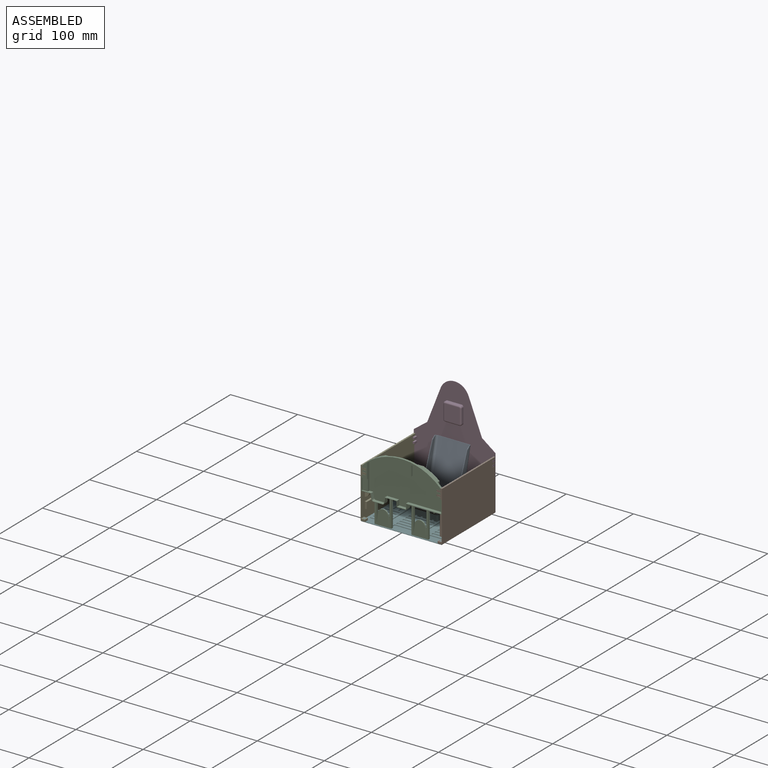
[diagram: assembled view]
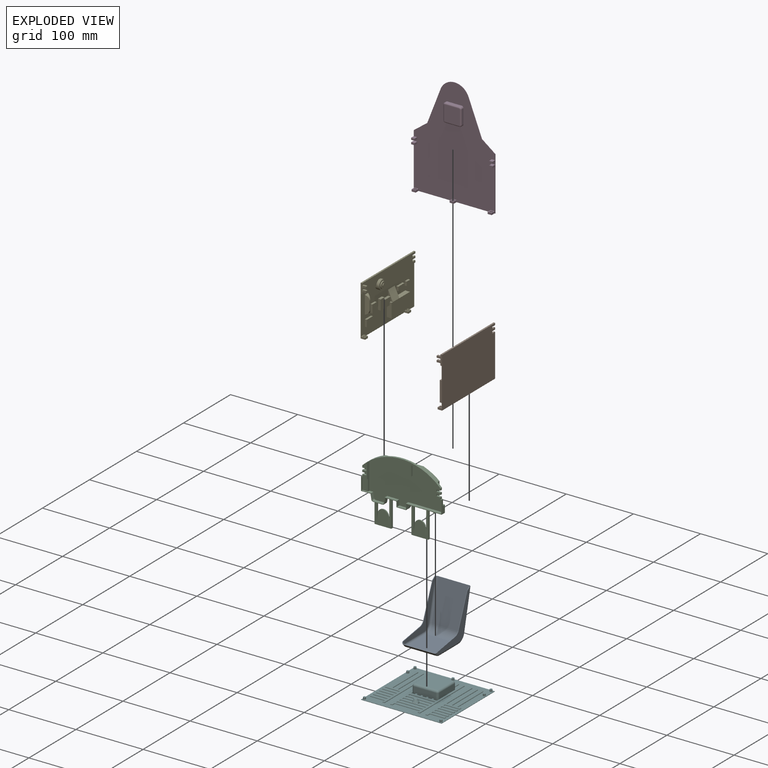
[diagram: exploded view]
GUIDED TOUR — MATED ASSEMBLY (Onshape document f643e75d56a3ad6be1e354ca, AutoMate assembly f643e75d56a3ad6be1e354ca_9b9a3edb59c0431f079ebedc_5ecf5f569c2795ce828b274c_default)

This assembly has 6 components, labeled P0..P5 below (a component is one placed occurrence of a part; the same part can appear more than once), held together by 5 mates. A mate is a constraint between two components; its type names the relative motion it leaves free:
  FASTENED — locks the two components together rigidly (no relative motion).
Axis/direction vectors are unit vectors and 'through' points are millimeter coordinates, both in the assembly's world frame.

MATES
  1. FASTENED "緊固 3": P1 <-> P5, direction (0.000, 0.000, 1.000) through (57.13, 58.55, -73.95) mm
  2. FASTENED "緊固 2": P4 <-> P5, direction (0.000, 0.000, 1.000) through (-56.87, 58.55, -73.95) mm
  3. FASTENED "緊固 5": P2 <-> P1, direction (1.000, 0.000, 0.000) through (58.33, -36.45, -9.35) mm
  4. FASTENED "緊固 1": P5 <-> P3, direction (0.000, 0.000, 1.000) through (-56.47, 73.55, -73.95) mm
  5. FASTENED "緊固 4": P0 <-> P5, direction (0.000, 0.000, -1.000) through (0.13, 48.55, -63.95) mm

ASSEMBLY ORDER
  1. P2 — the base component [order verified]
  2. P0 [order verified]
  3. P1 [order verified]
  4. P4 [order verified]
  5. P5 [order verified]
  6. P3 [order verified]
Order-tag legend:
  [order verified] — this step's position reverses a verified removal order: the component was checked to insert without passing through the ones already placed.

Of the 6 components, 4 carry the full construction recipe — the FeatureScript program that regenerates the part's solid from scratch; the rest are supplied as boundary geometry only.
Each toured component is shown spotlighted twice — in the assembled view, then in the exploded view, where a leader line traces a displaced component back to its assembled socket (saturated green if recipe-attached, orange if geometry-only; every other component desaturated gray) — followed by its recipe or geometry summary and the mates that hold it.
NOTE — this tour is split across 2 documents so each fits a 32k-token context. This is document 1: the component sections continue in the remaining 1 document, each repeating the header above.
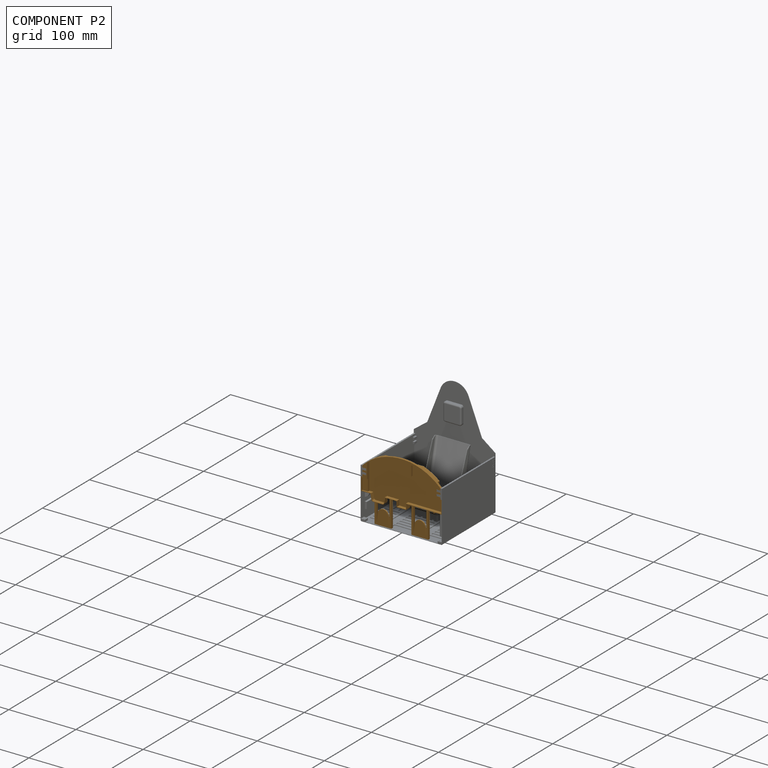
[diagram: component P2 — assembled]
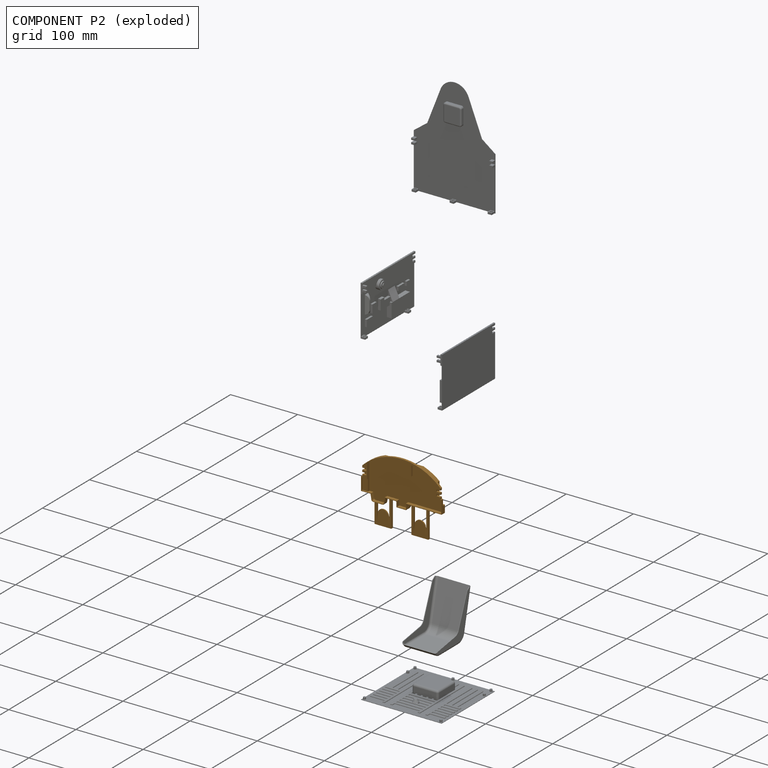
[diagram: component P2 — exploded]
COMPONENT P2 — geometry summary (no construction recipe available for this part):
  bounding box: 120.0 x 98.1 x 20.2 mm
  B-rep topology: 1 solid, 248 faces, 1322 edges
  volume: 21059 mm^3 (9% of its bounding box)
Held by: FASTENED mate "緊固 5" to P1.
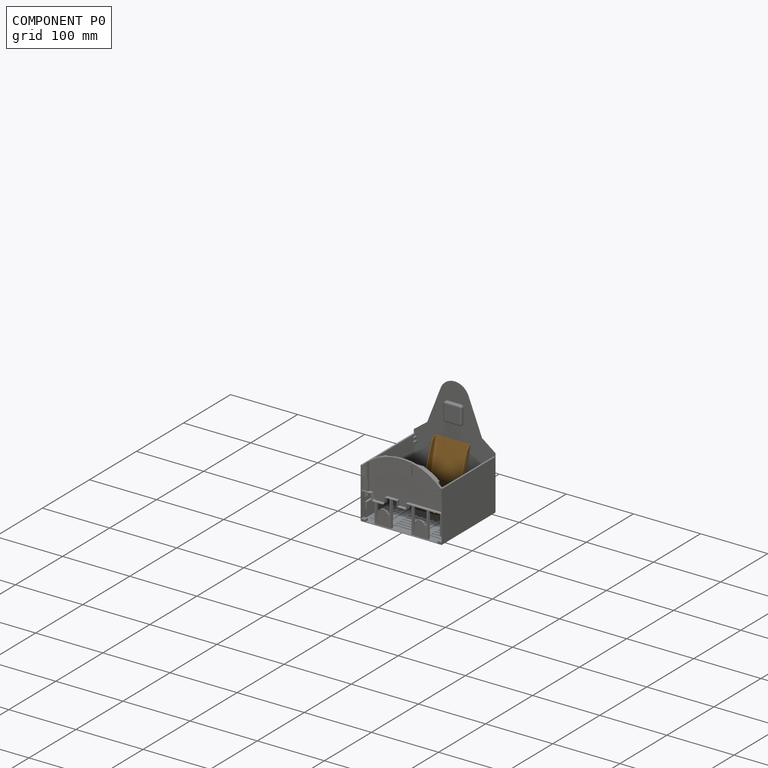
[diagram: component P0 — assembled]
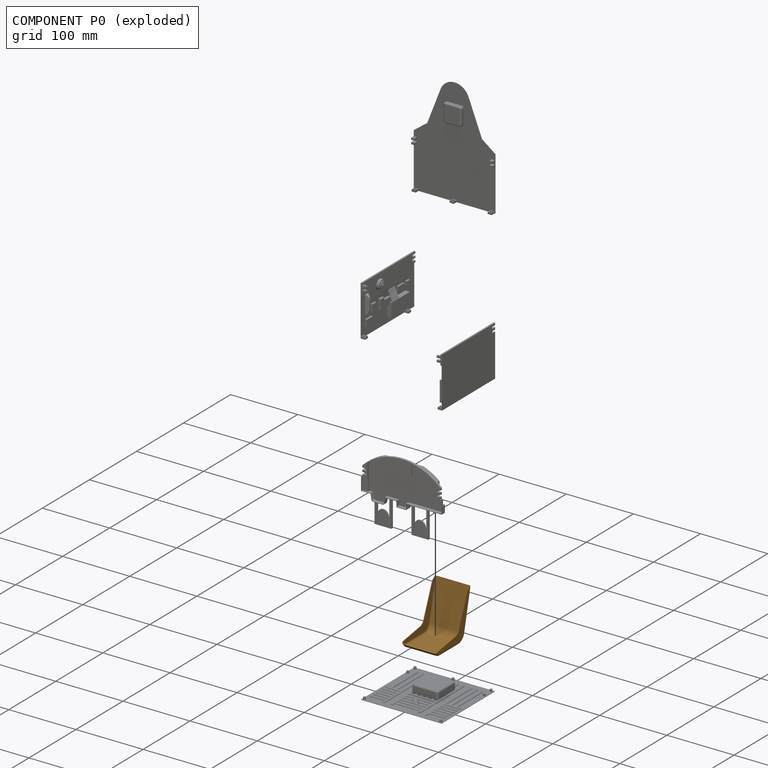
[diagram: component P0 — exploded]
COMPONENT P0 — geometry summary (no construction recipe available for this part):
  bounding box: 74.7 x 71.1 x 52.6 mm
  B-rep topology: 1 solid, 44 faces, 204 edges
  volume: 7087 mm^3 (3% of its bounding box)
  symmetry: mirror-symmetric across its x mid-plane
Held by: FASTENED mate "緊固 4" to P5.
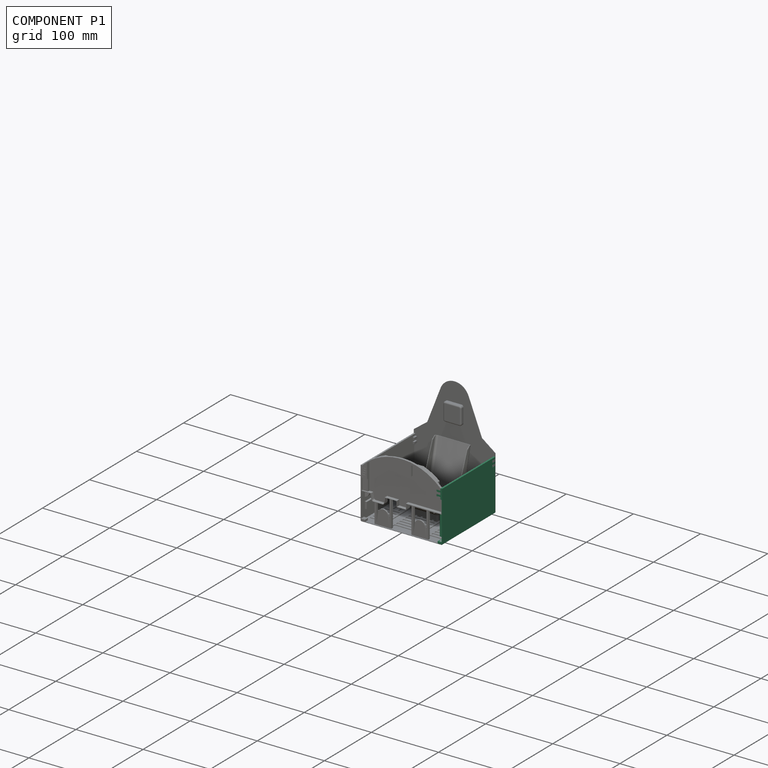
[diagram: component P1 — assembled]
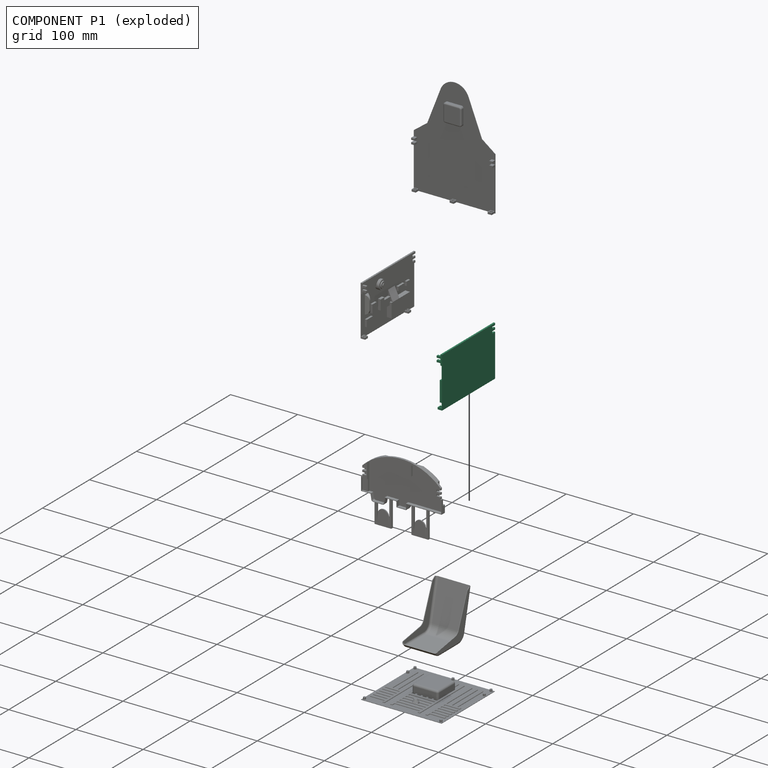
[diagram: component P1 — exploded]
COMPONENT P1 — recipe-attached (CADFS 00360887, mesh-verified: the recipe's output STEP matches this component's geometry to below the mesh-comparison resolution (tessellation chordal tolerance ~0.204 mm)).
Held by: FASTENED mate "緊固 3" to P5; FASTENED mate "緊固 5" to P2.
Construction recipe (FeatureScript — the CAD program that rebuilds this solid; sketch coordinates are in the units given by the * unit suffixes, e.g. mm):

FeatureScript 1511;
import(path : "onshape/std/geometry.fs", version : "1511.0");
import(path : "onshape/std/common.fs", version : "1511.0");
const mm = millimeter;
const VERTEX = EntityType.VERTEX;
const EDGE = EntityType.EDGE;
const FACE = EntityType.FACE;
const BODY = EntityType.BODY;
function v(x, y){return vector(x, y);}
function OD(order){return orderDisambiguation(order);}
function OSD(set){return originalSetDisambiguation(set);}
function TD(topology){return topologyDisambiguation(topology);}
function TDD(query){return trueDependencyDisambiguation(query);}
function sQuery(a, b, c) {return sketchEntityQuery(a, b, c);}

annotation { "Feature Type Name" : "Feature", "Feature Type Description" : "" }
export const myFeature = defineFeature(function(context is Context, id is Id, definition is map)
    precondition{}
    {
        {
            var Q0;
            Q0=qCreatedBy(makeId("Top.planeOp"),FACE);
            var sketch = newSketch(context, id + "F0", { "sketchPlane" : qUnion([Q0])});
            skLineSegment(sketch, "E0.bottom", {"start": v(-56.5, 75) * mm, "end": v(56.5, 75) * mm});
            skLineSegment(sketch, "E0.top", {"start": v(-56.5, 0) * mm, "end": v(56.5, 0) * mm});
            skLineSegment(sketch, "E0.left", {"start": v(-56.5, 75) * mm, "end": v(-56.5, 0) * mm});
            skLineSegment(sketch, "E0.right", {"start": v(56.5, 75) * mm, "end": v(56.5, 0) * mm});
            skPoint(sketch, "E1", {"position": v(0, 0) * mm});
            skSolve(sketch);
        }
        {
            var Q0;
            Q0 = qSketchRegion(id + "F0", true);
            extrude(context, id + "F1", {"entities" : qUnion([Q0]), "depth" : 0.6 * mm});
        }
        {
            var Q0;
            Q0=makeQuery(id+"F1.opExtrude","CAP_FACE",FACE,{"disambiguationData":[OSD([sQuery(id+"F0.wireOp",EDGE,"E0.bottom"),sQuery(id+"F0.wireOp",EDGE,"E0.top"),sQuery(id+"F0.wireOp",EDGE,"E0.left"),sQuery(id+"F0.wireOp",EDGE,"E0.right")])],"isStart":false});
            var sketch = newSketch(context, id + "F2", { "sketchPlane" : qUnion([Q0])});
            skLineSegment(sketch, "E2.bottom", {"start": v(-56.5, 75) * mm, "end": v(56.5, 75) * mm});
            skLineSegment(sketch, "E2.top", {"start": v(-56.5, 60) * mm, "end": v(56.5, 60) * mm});
            skLineSegment(sketch, "E2.left", {"start": v(-56.5, 75) * mm, "end": v(-56.5, 60) * mm});
            skLineSegment(sketch, "E2.right", {"start": v(56.5, 75) * mm, "end": v(56.5, 60) * mm});
            skSolve(sketch);
        }
        {
            var Q0;
            Q0 = qSketchRegion(id + "F2", true);
            extrude(context, id + "F3", {"entities" : qUnion([Q0]), "operationType" : NewBodyOperationType.ADD, "depth" : 1.8 * mm});
        }
        {
            var Q0;
            Q0=qCreatedBy(makeId("Right.planeOp"),FACE);
            cPlane(context, id + "F4", {"entities" : qUnion([Q0]), "cplaneType" : CPlaneType.OFFSET, "offset" : 10 * mm, "width" : 150 * mm, "height" : 150 * mm});
        }
        {
            var Q0;
            Q0=qCreatedBy(id+"F4.planeOp",FACE);
            var sketch = newSketch(context, id + "F5", { "sketchPlane" : qUnion([Q0])});
            skLineSegment(sketch, "E3", {"start": v(6, 0.6) * mm, "end": v(36, 0.6) * mm});
            skLineSegment(sketch, "E4", {"start": v(36, 0.6) * mm, "end": v(36, 8.6) * mm});
            skLineSegment(sketch, "E5", {"start": v(6, 8.6) * mm, "end": v(6, 0.6) * mm});
            skLineSegment(sketch, "E6", {"start": v(36, 8.6) * mm, "end": v(6, 8.6) * mm});
            skSolve(sketch);
        }
        {
            var Q0;
            Q0 = qSketchRegion(id + "F5", true);
            extrude(context, id + "F6", {"entities" : qUnion([Q0]), "operationType" : NewBodyOperationType.ADD, "depth" : 39 * mm});
        }
        {
            var Q0;
            Q0=makeQuery(id+"F1.opExtrude","CAP_FACE",FACE,{"disambiguationData":[OSD([sQuery(id+"F0.wireOp",EDGE,"E0.bottom"),sQuery(id+"F0.wireOp",EDGE,"E0.top"),sQuery(id+"F0.wireOp",EDGE,"E0.left"),sQuery(id+"F0.wireOp",EDGE,"E0.right")])],"isStart":false});
            var sketch = newSketch(context, id + "F7", { "sketchPlane" : qUnion([Q0])});
            skLineSegment(sketch, "E7", {"start": v(-54, 17) * mm, "end": v(-54, 8) * mm});
            skLineSegment(sketch, "E8", {"start": v(-54, 8) * mm, "end": v(10, 8) * mm});
            skLineSegment(sketch, "E9", {"start": v(10, 8) * mm, "end": v(10, 39) * mm});
            skLineSegment(sketch, "E10", {"start": v(10, 39) * mm, "end": v(-26, 39) * mm});
            skLineSegment(sketch, "E11", {"start": v(-26, 39) * mm, "end": v(-26, 17) * mm});
            skLineSegment(sketch, "E12", {"start": v(-26, 17) * mm, "end": v(-54, 17) * mm});
            skSolve(sketch);
        }
        {
            var Q0;
            Q0 = qSketchRegion(id + "F7", true);
            extrude(context, id + "F8", {"entities" : qUnion([Q0]), "operationType" : NewBodyOperationType.ADD, "depth" : 3.4 * mm});
        }
        {
            var Q0;
            Q0=makeQuery(id+"F8.opExtrude","CAP_FACE",FACE,{"disambiguationData":[OSD([sQuery(id+"F7.wireOp",EDGE,"E7"),sQuery(id+"F7.wireOp",EDGE,"E8"),sQuery(id+"F7.wireOp",EDGE,"E9"),sQuery(id+"F7.wireOp",EDGE,"uyQ6YQ2C-q6pP-OxL6-5fo1-xEx53bqn0l92"),sQuery(id+"F7.wireOp",EDGE,"j48iJAs0-QAIT-l2oA-MukY-UUH54dbWInNL"),sQuery(id+"F7.wireOp",EDGE,"E10"),sQuery(id+"F7.wireOp",EDGE,"E11"),sQuery(id+"F7.wireOp",EDGE,"E12")])],"isStart":false});
            var sketch = newSketch(context, id + "F9", { "sketchPlane" : qUnion([Q0])});
            skLineSegment(sketch, "E13", {"start": v(-26, 17) * mm, "end": v(-26, 26.14) * mm});
            skLineSegment(sketch, "E14", {"start": v(-26, 26.14) * mm, "end": v(0.01, 30.73) * mm});
            skLineSegment(sketch, "E15", {"start": v(0.01, 30.73) * mm, "end": v(1.57, 21.86) * mm});
            skLineSegment(sketch, "E16", {"start": v(1.57, 21.86) * mm, "end": v(-26, 17) * mm});
            skSolve(sketch);
        }
        {
            var Q0;
            Q0 = qSketchRegion(id + "F9", true);
            extrude(context, id + "F10", {"entities" : qUnion([Q0]), "operationType" : NewBodyOperationType.ADD, "depth" : 4 * mm});
        }
        {
            var Q0;
            Q0=makeQuery(id+"F1.opExtrude","CAP_FACE",FACE,{"disambiguationData":[OSD([sQuery(id+"F0.wireOp",EDGE,"E0.bottom"),sQuery(id+"F0.wireOp",EDGE,"E0.top"),sQuery(id+"F0.wireOp",EDGE,"E0.left"),sQuery(id+"F0.wireOp",EDGE,"E0.right")])],"isStart":false});
            var sketch = newSketch(context, id + "F11", { "sketchPlane" : qUnion([Q0])});
            skLineSegment(sketch, "E17", {"start": v(-19, 39) * mm, "end": v(-26, 39) * mm});
            skLineSegment(sketch, "E18", {"start": v(-26, 39) * mm, "end": v(-26, 42.75) * mm});
            skLineSegment(sketch, "E19", {"start": v(-22.78, 43.86) * mm, "end": v(-19, 39) * mm});
            skPoint(sketch, "E20.visualSharp", {"position": v(-26, 48) * mm});
            skArc(sketch, "E20.filletArc", {"start": v(-22.78, 43.86) * mm, "mid": v(-24.78, 44.46) * mm, "end": v(-26, 42.75) * mm});
            skSolve(sketch);
        }
        {
            var Q0;
            Q0 = qSketchRegion(id + "F11", true);
            extrude(context, id + "F12", {"entities" : qUnion([Q0]), "operationType" : NewBodyOperationType.ADD, "depth" : 2.4 * mm});
        }
        {
            var Q0;
            Q0=makeQuery(id+"F12.boolean.opBoolean","MERGE",FACE,{"derivedFrom":[makeQuery(id+"F10.boolean.opBoolean","MERGE",FACE,{"derivedFrom":[makeQuery(id+"F8.opExtrude","SWEPT_FACE",FACE,{"disambiguationData":[OSD([sQuery(id+"F7.wireOp",EDGE,"E11")])]}),makeQuery(id+"F10.opExtrude","SWEPT_FACE",FACE,{"disambiguationData":[OSD([sQuery(id+"F9.wireOp",EDGE,"E13")])]})]}),makeQuery(id+"F12.opExtrude","SWEPT_FACE",FACE,{"disambiguationData":[OSD([sQuery(id+"F11.wireOp",EDGE,"E18")])]})]});
            var sketch = newSketch(context, id + "F13", { "sketchPlane" : qUnion([Q0])});
            skLineSegment(sketch, "E21", {"start": v(-32, 0.6) * mm, "end": v(-25, 0.6) * mm});
            skLineSegment(sketch, "E22", {"start": v(-25, 0.6) * mm, "end": v(-26.55, 6.4) * mm});
            skArc(sketch, "E23", {"start": v(-26.55, 6.4) * mm, "mid": v(-30.37, 4.53) * mm, "end": v(-32, 0.6) * mm});
            skSolve(sketch);
        }
        {
            var Q0;
            Q0 = qSketchRegion(id + "F13", true);
            extrude(context, id + "F14", {"entities" : qUnion([Q0]), "operationType" : NewBodyOperationType.ADD, "depth" : 28 * mm});
        }
        {
            var Q0;
            Q0=makeQuery(id+"F1.opExtrude","CAP_FACE",FACE,{"disambiguationData":[OSD([sQuery(id+"F0.wireOp",EDGE,"E0.bottom"),sQuery(id+"F0.wireOp",EDGE,"E0.top"),sQuery(id+"F0.wireOp",EDGE,"E0.left"),sQuery(id+"F0.wireOp",EDGE,"E0.right")])],"isStart":false});
            var sketch = newSketch(context, id + "F15", { "sketchPlane" : qUnion([Q0])});
            skLineSegment(sketch, "E24.bottom", {"start": v(-47, 30.4) * mm, "end": v(-43, 30.4) * mm});
            skLineSegment(sketch, "E24.top", {"start": v(-47, 28.4) * mm, "end": v(-43, 28.4) * mm});
            skLineSegment(sketch, "E24.left", {"start": v(-47, 30.4) * mm, "end": v(-47, 28.4) * mm});
            skLineSegment(sketch, "E24.right", {"start": v(-43, 30.4) * mm, "end": v(-43, 28.4) * mm});
            skLineSegment(sketch, "E25.bottom", {"start": v(-38, 30.4) * mm, "end": v(-34, 30.4) * mm});
            skLineSegment(sketch, "E25.top", {"start": v(-38, 28.4) * mm, "end": v(-34, 28.4) * mm});
            skLineSegment(sketch, "E25.left", {"start": v(-38, 30.4) * mm, "end": v(-38, 28.4) * mm});
            skLineSegment(sketch, "E25.right", {"start": v(-34, 30.4) * mm, "end": v(-34, 28.4) * mm});
            skSolve(sketch);
        }
        {
            var Q0;
            Q0 = qSketchRegion(id + "F15", true);
            extrude(context, id + "F16", {"entities" : qUnion([Q0]), "operationType" : NewBodyOperationType.ADD, "depth" : 5.4 * mm});
        }
        {
            var Q0;
            Q0=makeQuery(id+"F1.opExtrude","CAP_FACE",FACE,{"disambiguationData":[OSD([sQuery(id+"F0.wireOp",EDGE,"E0.bottom"),sQuery(id+"F0.wireOp",EDGE,"E0.top"),sQuery(id+"F0.wireOp",EDGE,"E0.left"),sQuery(id+"F0.wireOp",EDGE,"E0.right")])],"isStart":false});
            var sketch = newSketch(context, id + "F17", { "sketchPlane" : qUnion([Q0])});
            skLineSegment(sketch, "E26", {"start": v(29.97, 62) * mm, "end": v(18.5, 45.62) * mm});
            skLineSegment(sketch, "E27", {"start": v(18.5, 45.62) * mm, "end": v(7.03, 62) * mm});
            skArc(sketch, "E28", {"start": v(29.97, 62) * mm, "mid": v(18.5, 65.62) * mm, "end": v(7.03, 62) * mm});
            skSolve(sketch);
        }
        {
            var Q0;
            Q0 = qSketchRegion(id + "F17", true);
            extrude(context, id + "F18", {"entities" : qUnion([Q0]), "operationType" : NewBodyOperationType.ADD, "depth" : 9 * mm});
        }
        {
            var Q0;
            Q0=makeQuery(id+"F18.opExtrude","SWEPT_EDGE",EDGE,{"disambiguationData":[OSD([sQuery(id+"F17.wireOp",EDGE,"E26"),sQuery(id+"F17.wireOp",EDGE,"E27")])]});
            fillet(context, id + "F19", {"entities" : qUnion([Q0]), "radius" : 3 * mm, "tangentPropagation" : true, "allowEdgeOverflow" : false});
        }
        {
            var Q0;
            Q0=qCreatedBy(makeId("Right.planeOp"),FACE);
            cPlane(context, id + "F20", {"entities" : qUnion([Q0]), "cplaneType" : CPlaneType.OFFSET, "offset" : 5 * mm, "width" : 150 * mm, "height" : 150 * mm});
        }
        {
            var Q0;
            Q0=qCreatedBy(id+"F20.planeOp",FACE);
            var sketch = newSketch(context, id + "F21", { "sketchPlane" : qUnion([Q0])});
            skArc(sketch, "E29", {"start": v(52.93, 0) * mm, "mid": v(50.5, 3.1) * mm, "end": v(48.07, 0) * mm});
            skLineSegment(sketch, "E30", {"start": v(53, 0.6) * mm, "end": v(56, 0.6) * mm});
            skLineSegment(sketch, "E31", {"start": v(56, 0.6) * mm, "end": v(56, 1.8) * mm});
            skLineSegment(sketch, "E32", {"start": v(56, 1.8) * mm, "end": v(52.7, 1.8) * mm});
            skLineSegment(sketch, "E33", {"start": v(48.07, 0) * mm, "end": v(52.93, 0) * mm});
            skSolve(sketch);
        }
        {
            var Q0;
            Q0 = qSketchRegion(id + "F21", true);
            extrude(context, id + "F22", {"entities" : qUnion([Q0]), "operationType" : NewBodyOperationType.ADD, "oppositeDirection" : true, "depth" : 13 * mm});
        }
        {
            var Q0;
            Q0=makeQuery(id+"F22.opExtrude","CAP_FACE",FACE,{"disambiguationData":[OSD([sQuery(id+"F21.wireOp",EDGE,"E29"),sQuery(id+"F21.wireOp",EDGE,"E30"),sQuery(id+"F21.wireOp",EDGE,"E31"),sQuery(id+"F21.wireOp",EDGE,"E32")])],"isStart":false});
            var sketch = newSketch(context, id + "F23", { "sketchPlane" : qUnion([Q0])});
            skArc(sketch, "E34", {"start": v(-48.8, 0) * mm, "mid": v(-50.5, 2.4) * mm, "end": v(-52.2, 0) * mm});
            skLineSegment(sketch, "E35", {"start": v(-48.8, 0) * mm, "end": v(-52.2, 0) * mm});
            skSolve(sketch);
        }
        {
            var Q0;
            Q0 = qSketchRegion(id + "F23", true);
            extrude(context, id + "F24", {"entities" : qUnion([Q0]), "operationType" : NewBodyOperationType.ADD, "depth" : 4 * mm});
        }
        {
            var Q0;
            Q0=makeQuery(id+"F1.opExtrude","CAP_FACE",FACE,{"disambiguationData":[OSD([sQuery(id+"F0.wireOp",EDGE,"E0.bottom"),sQuery(id+"F0.wireOp",EDGE,"E0.top"),sQuery(id+"F0.wireOp",EDGE,"E0.left"),sQuery(id+"F0.wireOp",EDGE,"E0.right")])],"isStart":false});
            var sketch = newSketch(context, id + "F25", { "sketchPlane" : qUnion([Q0])});
            skCircle(sketch, "E36", {"center": v(-15, 56) * mm, "radius": 1.6 * mm});
            skSolve(sketch);
        }
        {
            var Q0;
            Q0 = qSketchRegion(id + "F25", true);
            extrude(context, id + "F26", {"entities" : qUnion([Q0]), "operationType" : NewBodyOperationType.ADD, "depth" : 2.4 * mm});
        }
        {
            var Q0;
            Q0=makeQuery(id+"F1.opExtrude","CAP_FACE",FACE,{"disambiguationData":[OSD([sQuery(id+"F0.wireOp",EDGE,"E0.bottom"),sQuery(id+"F0.wireOp",EDGE,"E0.top"),sQuery(id+"F0.wireOp",EDGE,"E0.left"),sQuery(id+"F0.wireOp",EDGE,"E0.right")])],"isStart":false});
            var sketch = newSketch(context, id + "F27", { "sketchPlane" : qUnion([Q0])});
            skLineSegment(sketch, "E37", {"start": v(-16.39, 56.8) * mm, "end": v(-20.87, 49) * mm});
            skLineSegment(sketch, "E38", {"start": v(-13.61, 55.2) * mm, "end": v(-18.1, 47.4) * mm});
            skArc(sketch, "E39", {"start": v(-20.87, 49) * mm, "mid": v(-20.28, 46.81) * mm, "end": v(-18.1, 47.4) * mm});
            skArc(sketch, "E40", {"start": v(-16.39, 56.8) * mm, "mid": v(-14.2, 57.39) * mm, "end": v(-13.61, 55.2) * mm});
            skSolve(sketch);
        }
        {
            var Q0;
            Q0 = qSketchRegion(id + "F27", true);
            extrude(context, id + "F28", {"entities" : qUnion([Q0]), "operationType" : NewBodyOperationType.ADD, "depth" : 1 * mm});
        }
        {
            var Q0;
            Q0=makeQuery(id+"F3.opExtrude","CAP_FACE",FACE,{"disambiguationData":[OSD([sQuery(id+"F2.wireOp",EDGE,"E2.bottom"),sQuery(id+"F2.wireOp",EDGE,"E2.top"),sQuery(id+"F2.wireOp",EDGE,"E2.left"),sQuery(id+"F2.wireOp",EDGE,"E2.right")])],"isStart":false});
            var sketch = newSketch(context, id + "F29", { "sketchPlane" : qUnion([Q0])});
            skLineSegment(sketch, "E41.bottom", {"start": v(53.5, 72) * mm, "end": v(56.5, 72) * mm});
            skLineSegment(sketch, "E41.top", {"start": v(53.5, 69.2) * mm, "end": v(56.5, 69.2) * mm});
            skLineSegment(sketch, "E41.left", {"start": v(53.5, 72) * mm, "end": v(53.5, 69.2) * mm});
            skLineSegment(sketch, "E41.right", {"start": v(56.5, 72) * mm, "end": v(56.5, 69.2) * mm});
            skLineSegment(sketch, "E42.bottom", {"start": v(53.5, 66) * mm, "end": v(56.5, 66) * mm});
            skLineSegment(sketch, "E42.top", {"start": v(53.5, 63.2) * mm, "end": v(56.5, 63.2) * mm});
            skLineSegment(sketch, "E42.left", {"start": v(53.5, 66) * mm, "end": v(53.5, 63.2) * mm});
            skLineSegment(sketch, "E42.right", {"start": v(56.5, 66) * mm, "end": v(56.5, 63.2) * mm});
            skSolve(sketch);
        }
        {
            var Q0;
            Q0 = qSketchRegion(id + "F29", true);
            extrude(context, id + "F30", {"entities" : qUnion([Q0]), "operationType" : NewBodyOperationType.ADD, "depth" : 5.6 * mm});
        }
        {
            var Q0;
            Q0=makeQuery(id+"F3.opExtrude","CAP_FACE",FACE,{"disambiguationData":[OSD([sQuery(id+"F2.wireOp",EDGE,"E2.bottom"),sQuery(id+"F2.wireOp",EDGE,"E2.top"),sQuery(id+"F2.wireOp",EDGE,"E2.left"),sQuery(id+"F2.wireOp",EDGE,"E2.right")])],"isStart":false});
            var sketch = newSketch(context, id + "F31", { "sketchPlane" : qUnion([Q0])});
            skLineSegment(sketch, "E43.bottom", {"start": v(-56.5, 72) * mm, "end": v(-50.5, 72) * mm});
            skLineSegment(sketch, "E43.top", {"start": v(-56.5, 69) * mm, "end": v(-50.5, 69) * mm});
            skLineSegment(sketch, "E43.left", {"start": v(-56.5, 72) * mm, "end": v(-56.5, 69) * mm});
            skLineSegment(sketch, "E43.right", {"start": v(-50.5, 72) * mm, "end": v(-50.5, 69) * mm});
            skLineSegment(sketch, "E44.bottom", {"start": v(-56.5, 66) * mm, "end": v(-50.5, 66) * mm});
            skLineSegment(sketch, "E44.top", {"start": v(-56.5, 63) * mm, "end": v(-50.5, 63) * mm});
            skLineSegment(sketch, "E44.left", {"start": v(-56.5, 66) * mm, "end": v(-56.5, 63) * mm});
            skLineSegment(sketch, "E44.right", {"start": v(-50.5, 66) * mm, "end": v(-50.5, 63) * mm});
            skSolve(sketch);
        }
        {
            var Q0;
            Q0 = qSketchRegion(id + "F31", true);
            extrude(context, id + "F32", {"entities" : qUnion([Q0]), "operationType" : NewBodyOperationType.REMOVE, "oppositeDirection" : true, "depth" : 3 * mm});
        }
        {
            var Q0;
            Q0=makeQuery(id+"F1.opExtrude","CAP_FACE",FACE,{"disambiguationData":[OSD([sQuery(id+"F0.wireOp",EDGE,"E0.bottom"),sQuery(id+"F0.wireOp",EDGE,"E0.top"),sQuery(id+"F0.wireOp",EDGE,"E0.left"),sQuery(id+"F0.wireOp",EDGE,"E0.right")])],"isStart":false});
            var sketch = newSketch(context, id + "F33", { "sketchPlane" : qUnion([Q0])});
            skLineSegment(sketch, "E45.bottom", {"start": v(56.5, 0) * mm, "end": v(50.5, 0) * mm});
            skLineSegment(sketch, "E45.top", {"start": v(56.5, 3) * mm, "end": v(50.5, 3) * mm});
            skLineSegment(sketch, "E45.left", {"start": v(56.5, 0) * mm, "end": v(56.5, 3) * mm});
            skLineSegment(sketch, "E45.right", {"start": v(50.5, 0) * mm, "end": v(50.5, 3) * mm});
            skLineSegment(sketch, "E46.bottom", {"start": v(-41.5, 0) * mm, "end": v(-35.5, 0) * mm});
            skLineSegment(sketch, "E46.top", {"start": v(-41.5, 3) * mm, "end": v(-35.5, 3) * mm});
            skLineSegment(sketch, "E46.left", {"start": v(-41.5, 0) * mm, "end": v(-41.5, 3) * mm});
            skLineSegment(sketch, "E46.right", {"start": v(-35.5, 0) * mm, "end": v(-35.5, 3) * mm});
            skSolve(sketch);
        }
        {
            var Q0;
            Q0 = qSketchRegion(id + "F33", true);
            extrude(context, id + "F34", {"entities" : qUnion([Q0]), "operationType" : NewBodyOperationType.ADD, "depth" : 6 * mm});
        }
        {
            var Q0;
            Q0=makeQuery(id+"F34.boolean.opBoolean","MERGE",FACE,{"derivedFrom":[makeQuery(id+"F1.opExtrude","SWEPT_FACE",FACE,{"disambiguationData":[OSD([sQuery(id+"F0.wireOp",EDGE,"E0.top")])]}),makeQuery(id+"F34.opExtrude","SWEPT_FACE",FACE,{"disambiguationData":[OSD([sQuery(id+"F33.wireOp",EDGE,"E45.bottom")])]}),makeQuery(id+"F34.opExtrude","SWEPT_FACE",FACE,{"disambiguationData":[OSD([sQuery(id+"F33.wireOp",EDGE,"E46.bottom")])]})]});
            var sketch = newSketch(context, id + "F35", { "sketchPlane" : qUnion([Q0])});
            skCircle(sketch, "E47", {"center": v(53.5, 3.6) * mm, "radius": 2 * mm});
            skCircle(sketch, "E48", {"center": v(-38.5, 3.6) * mm, "radius": 2 * mm});
            skSolve(sketch);
        }
        {
            var Q0;
            Q0 = qSketchRegion(id + "F35", true);
            extrude(context, id + "F36", {"entities" : qUnion([Q0]), "operationType" : NewBodyOperationType.REMOVE, "oppositeDirection" : true, "depth" : 4 * mm});
        }
    });
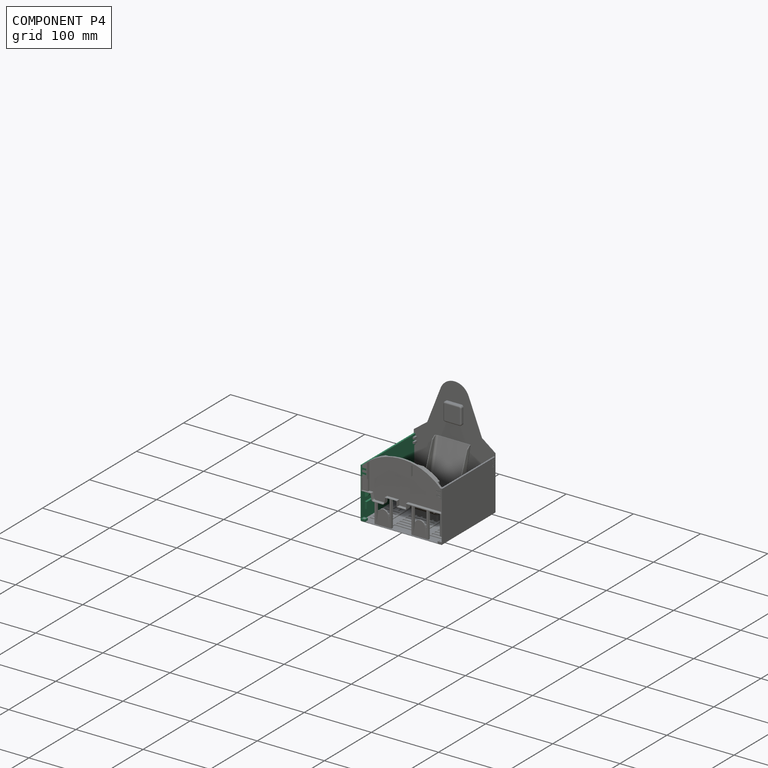
[diagram: component P4 — assembled]
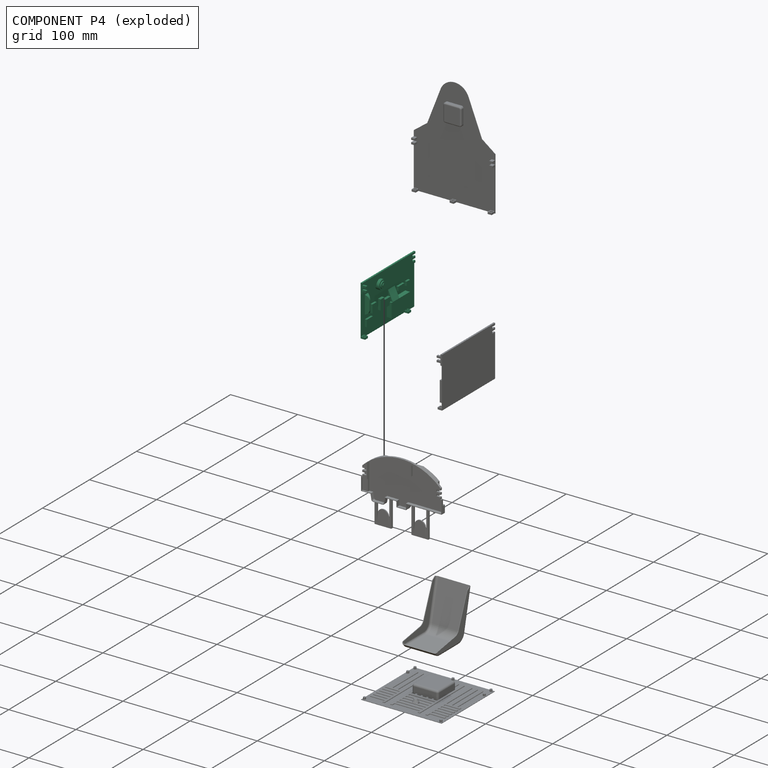
[diagram: component P4 — exploded]
COMPONENT P4 — recipe-attached (CADFS 00360886, mesh-verified: the recipe's output STEP matches this component's geometry to below the mesh-comparison resolution (tessellation chordal tolerance ~0.204 mm)).
Held by: FASTENED mate "緊固 2" to P5.
Construction recipe (FeatureScript — the CAD program that rebuilds this solid; sketch coordinates are in the units given by the * unit suffixes, e.g. mm):

FeatureScript 1511;
import(path : "onshape/std/geometry.fs", version : "1511.0");
import(path : "onshape/std/common.fs", version : "1511.0");
const mm = millimeter;
const VERTEX = EntityType.VERTEX;
const EDGE = EntityType.EDGE;
const FACE = EntityType.FACE;
const BODY = EntityType.BODY;
function v(x, y){return vector(x, y);}
function OD(order){return orderDisambiguation(order);}
function OSD(set){return originalSetDisambiguation(set);}
function TD(topology){return topologyDisambiguation(topology);}
function TDD(query){return trueDependencyDisambiguation(query);}
function sQuery(a, b, c) {return sketchEntityQuery(a, b, c);}

annotation { "Feature Type Name" : "Feature", "Feature Type Description" : "" }
export const myFeature = defineFeature(function(context is Context, id is Id, definition is map)
    precondition{}
    {
        {
            var Q0;
            Q0=qCreatedBy(makeId("Top.planeOp"),FACE);
            var sketch = newSketch(context, id + "F0", { "sketchPlane" : qUnion([Q0])});
            skLineSegment(sketch, "E0.bottom", {"start": v(-56.5, 75) * mm, "end": v(56.5, 75) * mm});
            skLineSegment(sketch, "E0.top", {"start": v(-56.5, 0) * mm, "end": v(56.5, 0) * mm});
            skLineSegment(sketch, "E0.left", {"start": v(-56.5, 75) * mm, "end": v(-56.5, 0) * mm});
            skLineSegment(sketch, "E0.right", {"start": v(56.5, 75) * mm, "end": v(56.5, 0) * mm});
            skPoint(sketch, "E1", {"position": v(0, 0) * mm});
            skSolve(sketch);
        }
        {
            var Q0;
            Q0 = qSketchRegion(id + "F0", true);
            extrude(context, id + "F1", {"entities" : qUnion([Q0]), "depth" : 0.6 * mm});
        }
        {
            var Q0;
            Q0=makeQuery(id+"F1.opExtrude","CAP_FACE",FACE,{"disambiguationData":[OSD([sQuery(id+"F0.wireOp",EDGE,"E0.bottom"),sQuery(id+"F0.wireOp",EDGE,"E0.top"),sQuery(id+"F0.wireOp",EDGE,"E0.left"),sQuery(id+"F0.wireOp",EDGE,"E0.right")])],"isStart":false});
            var sketch = newSketch(context, id + "F2", { "sketchPlane" : qUnion([Q0])});
            skLineSegment(sketch, "E2.bottom", {"start": v(-56.5, 75) * mm, "end": v(56.5, 75) * mm});
            skLineSegment(sketch, "E2.top", {"start": v(-56.5, 60) * mm, "end": v(56.5, 60) * mm});
            skLineSegment(sketch, "E2.left", {"start": v(-56.5, 75) * mm, "end": v(-56.5, 60) * mm});
            skLineSegment(sketch, "E2.right", {"start": v(56.5, 75) * mm, "end": v(56.5, 60) * mm});
            skSolve(sketch);
        }
        {
            var Q0;
            Q0 = qSketchRegion(id + "F2", true);
            extrude(context, id + "F3", {"entities" : qUnion([Q0]), "operationType" : NewBodyOperationType.ADD, "depth" : 1.8 * mm});
        }
        {
            var Q0;
            Q0=makeQuery(id+"F1.opExtrude","CAP_FACE",FACE,{"disambiguationData":[OSD([sQuery(id+"F0.wireOp",EDGE,"E0.bottom"),sQuery(id+"F0.wireOp",EDGE,"E0.top"),sQuery(id+"F0.wireOp",EDGE,"E0.left"),sQuery(id+"F0.wireOp",EDGE,"E0.right")])],"isStart":false});
            var sketch = newSketch(context, id + "F4", { "sketchPlane" : qUnion([Q0])});
            skCircle(sketch, "E3", {"center": v(-19.5, 60) * mm, "radius": 7 * mm});
            skSolve(sketch);
        }
        {
            var Q0;
            Q0 = qSketchRegion(id + "F4", true);
            extrude(context, id + "F5", {"entities" : qUnion([Q0]), "operationType" : NewBodyOperationType.ADD, "depth" : 6 * mm});
        }
        {
            var Q0;
            Q0=makeQuery(id+"F5.opExtrude","CAP_FACE",FACE,{"disambiguationData":[OSD([sQuery(id+"F4.wireOp",EDGE,"E3")])],"isStart":false});
            var sketch = newSketch(context, id + "F6", { "sketchPlane" : qUnion([Q0])});
            skCircle(sketch, "E4", {"center": v(-19.5, 60) * mm, "radius": 5 * mm});
            skSolve(sketch);
        }
        {
            var Q0;
            Q0 = qSketchRegion(id + "F6", true);
            extrude(context, id + "F7", {"entities" : qUnion([Q0]), "operationType" : NewBodyOperationType.ADD, "depth" : 1.6 * mm});
        }
        {
            var Q0;
            Q0=makeQuery(id+"F7.opExtrude","CAP_FACE",FACE,{"disambiguationData":[OSD([sQuery(id+"F6.wireOp",EDGE,"E4")])],"isStart":false});
            var sketch = newSketch(context, id + "F8", { "sketchPlane" : qUnion([Q0])});
            skCircle(sketch, "E5", {"center": v(-19.5, 60) * mm, "radius": 2.5 * mm});
            skSolve(sketch);
        }
        {
            var Q0;
            Q0 = qSketchRegion(id + "F8", true);
            extrude(context, id + "F9", {"entities" : qUnion([Q0]), "operationType" : NewBodyOperationType.ADD, "depth" : 1 * mm});
        }
        {
            var Q0;
            Q0=makeQuery(id+"F1.opExtrude","CAP_FACE",FACE,{"disambiguationData":[OSD([sQuery(id+"F0.wireOp",EDGE,"E0.bottom"),sQuery(id+"F0.wireOp",EDGE,"E0.top"),sQuery(id+"F0.wireOp",EDGE,"E0.left"),sQuery(id+"F0.wireOp",EDGE,"E0.right")])],"isStart":false});
            var sketch = newSketch(context, id + "F10", { "sketchPlane" : qUnion([Q0])});
            skLineSegment(sketch, "E6.bottom", {"start": v(-48.5, 23) * mm, "end": v(-35.5, 23) * mm});
            skLineSegment(sketch, "E6.top", {"start": v(-48.5, 13) * mm, "end": v(-35.5, 13) * mm});
            skLineSegment(sketch, "E6.left", {"start": v(-48.5, 23) * mm, "end": v(-48.5, 13) * mm});
            skLineSegment(sketch, "E6.right", {"start": v(-35.5, 23) * mm, "end": v(-35.5, 13) * mm});
            skLineSegment(sketch, "E7.bottom", {"start": v(-36.5, 39) * mm, "end": v(-27.5, 39) * mm});
            skLineSegment(sketch, "E7.top", {"start": v(-36.5, 27) * mm, "end": v(-27.5, 27) * mm});
            skLineSegment(sketch, "E7.left", {"start": v(-36.5, 39) * mm, "end": v(-36.5, 27) * mm});
            skLineSegment(sketch, "E7.right", {"start": v(-27.5, 39) * mm, "end": v(-27.5, 27) * mm});
            skLineSegment(sketch, "E8.bottom", {"start": v(18.5, 42) * mm, "end": v(31.5, 42) * mm});
            skLineSegment(sketch, "E8.top", {"start": v(18.5, 36) * mm, "end": v(31.5, 36) * mm});
            skLineSegment(sketch, "E8.left", {"start": v(18.5, 42) * mm, "end": v(18.5, 36) * mm});
            skLineSegment(sketch, "E8.right", {"start": v(31.5, 42) * mm, "end": v(31.5, 36) * mm});
            skLineSegment(sketch, "E9.bottom", {"start": v(36.5, 42) * mm, "end": v(43.5, 42) * mm});
            skLineSegment(sketch, "E9.top", {"start": v(36.5, 36) * mm, "end": v(43.5, 36) * mm});
            skLineSegment(sketch, "E9.left", {"start": v(36.5, 42) * mm, "end": v(36.5, 36) * mm});
            skLineSegment(sketch, "E9.right", {"start": v(43.5, 42) * mm, "end": v(43.5, 36) * mm});
            skSolve(sketch);
        }
        {
            var Q0;
            Q0 = qSketchRegion(id + "F10", true);
            extrude(context, id + "F11", {"entities" : qUnion([Q0]), "operationType" : NewBodyOperationType.ADD, "depth" : 3 * mm});
        }
        {
            var Q0;
            Q0=makeQuery(id+"F1.opExtrude","CAP_FACE",FACE,{"disambiguationData":[OSD([sQuery(id+"F0.wireOp",EDGE,"E0.bottom"),sQuery(id+"F0.wireOp",EDGE,"E0.top"),sQuery(id+"F0.wireOp",EDGE,"E0.left"),sQuery(id+"F0.wireOp",EDGE,"E0.right")])],"isStart":false});
            var sketch = newSketch(context, id + "F12", { "sketchPlane" : qUnion([Q0])});
            skLineSegment(sketch, "E10", {"start": v(-20.5, 40) * mm, "end": v(-12.5, 40) * mm});
            skLineSegment(sketch, "E11", {"start": v(-12.5, 40) * mm, "end": v(-12.5, 36) * mm});
            skLineSegment(sketch, "E12", {"start": v(-12.5, 36) * mm, "end": v(0.5, 36) * mm});
            skLineSegment(sketch, "E13", {"start": v(0.5, 36) * mm, "end": v(0.5, 25) * mm});
            skLineSegment(sketch, "E14", {"start": v(0.5, 25) * mm, "end": v(-20.5, 25) * mm});
            skLineSegment(sketch, "E15", {"start": v(-20.5, 25) * mm, "end": v(-20.5, 40) * mm});
            skSolve(sketch);
        }
        {
            var Q0;
            Q0=makeQuery(id+"F1.opExtrude","CAP_FACE",FACE,{"disambiguationData":[OSD([sQuery(id+"F0.wireOp",EDGE,"E0.bottom"),sQuery(id+"F0.wireOp",EDGE,"E0.top"),sQuery(id+"F0.wireOp",EDGE,"E0.left"),sQuery(id+"F0.wireOp",EDGE,"E0.right")])],"isStart":false});
            var sketch = newSketch(context, id + "F13", { "sketchPlane" : qUnion([Q0])});
            skLineSegment(sketch, "E16.bottom", {"start": v(-1.5, 29) * mm, "end": v(37.5, 29) * mm});
            skLineSegment(sketch, "E16.top", {"start": v(-1.5, 8) * mm, "end": v(37.5, 8) * mm});
            skLineSegment(sketch, "E16.left", {"start": v(-1.5, 29) * mm, "end": v(-1.5, 8) * mm});
            skLineSegment(sketch, "E16.right", {"start": v(37.5, 29) * mm, "end": v(37.5, 8) * mm});
            skSolve(sketch);
        }
        {
            var Q0;
            Q0 = qSketchRegion(id + "F13", true);
            extrude(context, id + "F14", {"entities" : qUnion([Q0]), "operationType" : NewBodyOperationType.ADD, "depth" : 7 * mm});
        }
        {
            var Q0;
            Q0 = qSketchRegion(id + "F12", true);
            extrude(context, id + "F15", {"entities" : qUnion([Q0]), "operationType" : NewBodyOperationType.ADD, "depth" : 4 * mm});
        }
        {
            var Q0;
            Q0=qCreatedBy(makeId("Right.planeOp"),FACE);
            cPlane(context, id + "F16", {"entities" : qUnion([Q0]), "cplaneType" : CPlaneType.OFFSET, "offset" : 15 * mm, "width" : 150 * mm, "height" : 150 * mm});
        }
        {
            var Q0;
            Q0=qCreatedBy(id+"F16.planeOp",FACE);
            var sketch = newSketch(context, id + "F17", { "sketchPlane" : qUnion([Q0])});
            skLineSegment(sketch, "E17", {"start": v(44, 0.6) * mm, "end": v(29, 0.6) * mm});
            skLineSegment(sketch, "E18", {"start": v(29, 0.6) * mm, "end": v(29, 7.6) * mm});
            skLineSegment(sketch, "E19", {"start": v(29, 7.6) * mm, "end": v(44, 0.6) * mm});
            skSolve(sketch);
        }
        {
            var Q0;
            Q0 = qSketchRegion(id + "F17", true);
            extrude(context, id + "F18", {"entities" : qUnion([Q0]), "operationType" : NewBodyOperationType.ADD, "oppositeDirection" : true, "depth" : 14 * mm});
        }
        {
            var Q0;
            Q0=makeQuery(id+"F1.opExtrude","CAP_FACE",FACE,{"disambiguationData":[OSD([sQuery(id+"F0.wireOp",EDGE,"E0.bottom"),sQuery(id+"F0.wireOp",EDGE,"E0.top"),sQuery(id+"F0.wireOp",EDGE,"E0.left"),sQuery(id+"F0.wireOp",EDGE,"E0.right")])],"isStart":false});
            var sketch = newSketch(context, id + "F19", { "sketchPlane" : qUnion([Q0])});
            skLineSegment(sketch, "E20.bottom", {"start": v(-48.5, 56) * mm, "end": v(-41.5, 56) * mm});
            skLineSegment(sketch, "E20.top", {"start": v(-48.5, 29) * mm, "end": v(-41.5, 29) * mm});
            skLineSegment(sketch, "E20.left", {"start": v(-48.5, 56) * mm, "end": v(-48.5, 29) * mm});
            skLineSegment(sketch, "E20.right", {"start": v(-41.5, 56) * mm, "end": v(-41.5, 29) * mm});
            skSolve(sketch);
        }
        {
            var Q0;
            Q0=makeQuery(id+"F19.imprint","IMPRINT",FACE,{"disambiguationData":[TD([[makeQuery(id+"F19.imprint","IMPRINT",EDGE,{"derivedFrom":sQuery(id+"F19.wireOp",EDGE,"E20.bottom")}),-1.0]])]});
            cPlane(context, id + "F20", {"entities" : qUnion([Q0]), "cplaneType" : CPlaneType.OFFSET, "offset" : 6 * mm, "width" : 150 * mm, "height" : 150 * mm});
        }
        {
            var Q0;
            Q0=qCreatedBy(id+"F20.planeOp",FACE);
            var sketch = newSketch(context, id + "F21", { "sketchPlane" : qUnion([Q0])});
            skLineSegment(sketch, "E21.bottom", {"start": v(-47.1, 53) * mm, "end": v(-45.3, 53) * mm});
            skLineSegment(sketch, "E21.top", {"start": v(-47.1, 32) * mm, "end": v(-45.3, 32) * mm});
            skLineSegment(sketch, "E21.left", {"start": v(-47.1, 53) * mm, "end": v(-47.1, 32) * mm});
            skLineSegment(sketch, "E21.right", {"start": v(-45.3, 53) * mm, "end": v(-45.3, 32) * mm});
            skSolve(sketch);
        }
        {
            var Q1;
            Q1=makeQuery(id+"F19.imprint","IMPRINT",FACE,{"disambiguationData":[TD([[makeQuery(id+"F19.imprint","IMPRINT",EDGE,{"derivedFrom":sQuery(id+"F19.wireOp",EDGE,"E20.bottom")}),-1.0]])]});
            var Q2;
            Q2=makeQuery(id+"F21.imprint","IMPRINT",FACE,{"disambiguationData":[TD([[makeQuery(id+"F21.imprint","IMPRINT",EDGE,{"derivedFrom":sQuery(id+"F21.wireOp",EDGE,"E21.bottom")}),-1.0]])]});
            loft(context, id + "F22", {"operationType" : NewBodyOperationType.ADD, "sheetProfilesArray" : [{ "sheetProfileEntities" : qUnion([Q1]) }, { "sheetProfileEntities" : qUnion([Q2]) }]});
        }
        {
            var Q0;
            Q0=makeQuery(id+"F22.opLoft","MID_CAP_EDGE",EDGE,{"disambiguationData":[OSD([sQuery(id+"F21.wireOp",EDGE,"E21.bottom"),sQuery(id+"F21.wireOp",EDGE,"E21.left"),sQuery(id+"F21.wireOp",EDGE,"E21.right")])],"capPos":1.0});
            var Q1;
            Q1=makeQuery(id+"F22.opLoft","MID_CAP_EDGE",EDGE,{"disambiguationData":[OSD([sQuery(id+"F21.wireOp",EDGE,"E21.top"),sQuery(id+"F21.wireOp",EDGE,"E21.left"),sQuery(id+"F21.wireOp",EDGE,"E21.right")])],"capPos":1.0});
            fillet(context, id + "F23", {"entities" : qUnion([Q0, Q1]), "radius" : 7 * mm, "tangentPropagation" : true, "allowEdgeOverflow" : false});
        }
        {
            var Q0;
            Q0=makeQuery(id+"F3.opExtrude","CAP_FACE",FACE,{"disambiguationData":[OSD([sQuery(id+"F2.wireOp",EDGE,"E2.bottom"),sQuery(id+"F2.wireOp",EDGE,"E2.top"),sQuery(id+"F2.wireOp",EDGE,"E2.left"),sQuery(id+"F2.wireOp",EDGE,"E2.right")])],"isStart":false});
            var sketch = newSketch(context, id + "F24", { "sketchPlane" : qUnion([Q0])});
            skLineSegment(sketch, "E22.bottom", {"start": v(-56.5, 72) * mm, "end": v(-53.5, 72) * mm});
            skLineSegment(sketch, "E22.top", {"start": v(-56.5, 69.2) * mm, "end": v(-53.5, 69.2) * mm});
            skLineSegment(sketch, "E22.left", {"start": v(-56.5, 72) * mm, "end": v(-56.5, 69.2) * mm});
            skLineSegment(sketch, "E22.right", {"start": v(-53.5, 72) * mm, "end": v(-53.5, 69.2) * mm});
            skLineSegment(sketch, "E23.bottom", {"start": v(-56.5, 66) * mm, "end": v(-53.5, 66) * mm});
            skLineSegment(sketch, "E23.top", {"start": v(-56.5, 63.2) * mm, "end": v(-53.5, 63.2) * mm});
            skLineSegment(sketch, "E23.left", {"start": v(-56.5, 66) * mm, "end": v(-56.5, 63.2) * mm});
            skLineSegment(sketch, "E23.right", {"start": v(-53.5, 66) * mm, "end": v(-53.5, 63.2) * mm});
            skSolve(sketch);
        }
        {
            var Q0;
            Q0 = qSketchRegion(id + "F24", true);
            extrude(context, id + "F25", {"entities" : qUnion([Q0]), "operationType" : NewBodyOperationType.ADD, "depth" : 5.6 * mm});
        }
        {
            var Q0;
            Q0=makeQuery(id+"F3.opExtrude","CAP_FACE",FACE,{"disambiguationData":[OSD([sQuery(id+"F2.wireOp",EDGE,"E2.bottom"),sQuery(id+"F2.wireOp",EDGE,"E2.top"),sQuery(id+"F2.wireOp",EDGE,"E2.left"),sQuery(id+"F2.wireOp",EDGE,"E2.right")])],"isStart":false});
            var sketch = newSketch(context, id + "F26", { "sketchPlane" : qUnion([Q0])});
            skLineSegment(sketch, "E24.bottom", {"start": v(50.5, 72) * mm, "end": v(56.5, 72) * mm});
            skLineSegment(sketch, "E24.top", {"start": v(50.5, 69) * mm, "end": v(56.5, 69) * mm});
            skLineSegment(sketch, "E24.left", {"start": v(50.5, 72) * mm, "end": v(50.5, 69) * mm});
            skLineSegment(sketch, "E24.right", {"start": v(56.5, 72) * mm, "end": v(56.5, 69) * mm});
            skLineSegment(sketch, "E25.bottom", {"start": v(50.5, 66) * mm, "end": v(56.5, 66) * mm});
            skLineSegment(sketch, "E25.top", {"start": v(50.5, 63) * mm, "end": v(56.5, 63) * mm});
            skLineSegment(sketch, "E25.left", {"start": v(50.5, 66) * mm, "end": v(50.5, 63) * mm});
            skLineSegment(sketch, "E25.right", {"start": v(56.5, 66) * mm, "end": v(56.5, 63) * mm});
            skSolve(sketch);
        }
        {
            var Q0;
            Q0 = qSketchRegion(id + "F26", true);
            extrude(context, id + "F27", {"entities" : qUnion([Q0]), "operationType" : NewBodyOperationType.REMOVE, "oppositeDirection" : true, "depth" : 3 * mm});
        }
        {
            var Q0;
            Q0=makeQuery(id+"F1.opExtrude","CAP_FACE",FACE,{"disambiguationData":[OSD([sQuery(id+"F0.wireOp",EDGE,"E0.bottom"),sQuery(id+"F0.wireOp",EDGE,"E0.top"),sQuery(id+"F0.wireOp",EDGE,"E0.left"),sQuery(id+"F0.wireOp",EDGE,"E0.right")])],"isStart":false});
            var sketch = newSketch(context, id + "F28", { "sketchPlane" : qUnion([Q0])});
            skLineSegment(sketch, "E26.bottom", {"start": v(-56.5, 0) * mm, "end": v(-50.5, 0) * mm});
            skLineSegment(sketch, "E26.top", {"start": v(-56.5, 3) * mm, "end": v(-50.5, 3) * mm});
            skLineSegment(sketch, "E26.left", {"start": v(-56.5, 0) * mm, "end": v(-56.5, 3) * mm});
            skLineSegment(sketch, "E26.right", {"start": v(-50.5, 0) * mm, "end": v(-50.5, 3) * mm});
            skLineSegment(sketch, "E27.bottom", {"start": v(41.5, 0) * mm, "end": v(35.5, 0) * mm});
            skLineSegment(sketch, "E27.top", {"start": v(41.5, 3) * mm, "end": v(35.5, 3) * mm});
            skLineSegment(sketch, "E27.left", {"start": v(41.5, 0) * mm, "end": v(41.5, 3) * mm});
            skLineSegment(sketch, "E27.right", {"start": v(35.5, 0) * mm, "end": v(35.5, 3) * mm});
            skSolve(sketch);
        }
        {
            var Q0;
            Q0 = qSketchRegion(id + "F28", true);
            extrude(context, id + "F29", {"entities" : qUnion([Q0]), "operationType" : NewBodyOperationType.ADD, "depth" : 6 * mm});
        }
        {
            var Q0;
            Q0=makeQuery(id+"F29.boolean.opBoolean","MERGE",FACE,{"derivedFrom":[makeQuery(id+"F1.opExtrude","SWEPT_FACE",FACE,{"disambiguationData":[OSD([sQuery(id+"F0.wireOp",EDGE,"E0.top")])]}),makeQuery(id+"F29.opExtrude","SWEPT_FACE",FACE,{"disambiguationData":[OSD([sQuery(id+"F28.wireOp",EDGE,"E26.bottom")])]}),makeQuery(id+"F29.opExtrude","SWEPT_FACE",FACE,{"disambiguationData":[OSD([sQuery(id+"F28.wireOp",EDGE,"E27.bottom")])]})]});
            var sketch = newSketch(context, id + "F30", { "sketchPlane" : qUnion([Q0])});
            skCircle(sketch, "E28", {"center": v(-53.5, 3.6) * mm, "radius": 2 * mm});
            skCircle(sketch, "E29", {"center": v(38.5, 3.6) * mm, "radius": 2 * mm});
            skSolve(sketch);
        }
        {
            var Q0;
            Q0 = qSketchRegion(id + "F30", true);
            extrude(context, id + "F31", {"entities" : qUnion([Q0]), "operationType" : NewBodyOperationType.REMOVE, "oppositeDirection" : true, "depth" : 4 * mm});
        }
    });
